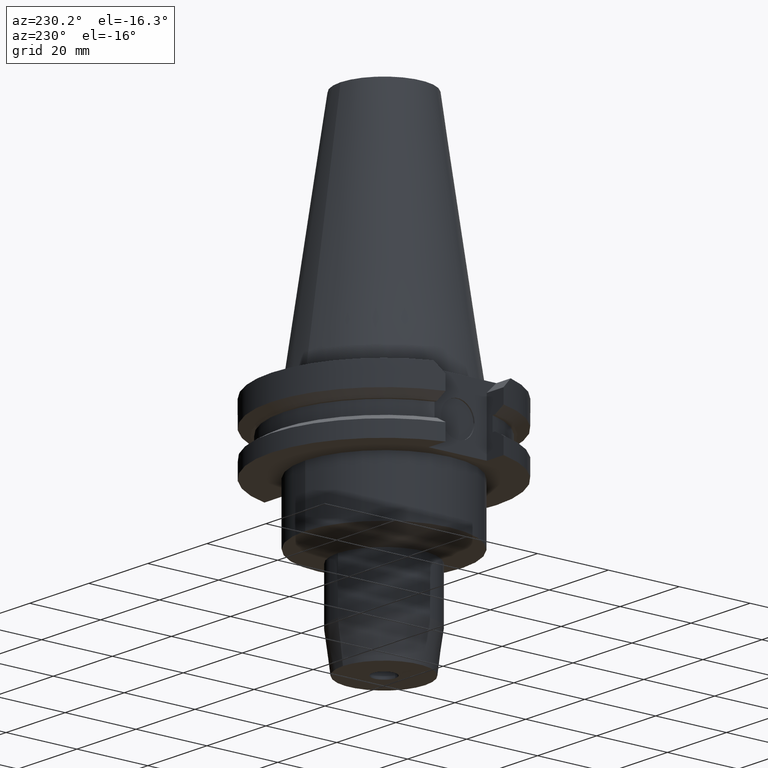
[diagram: clean part render]
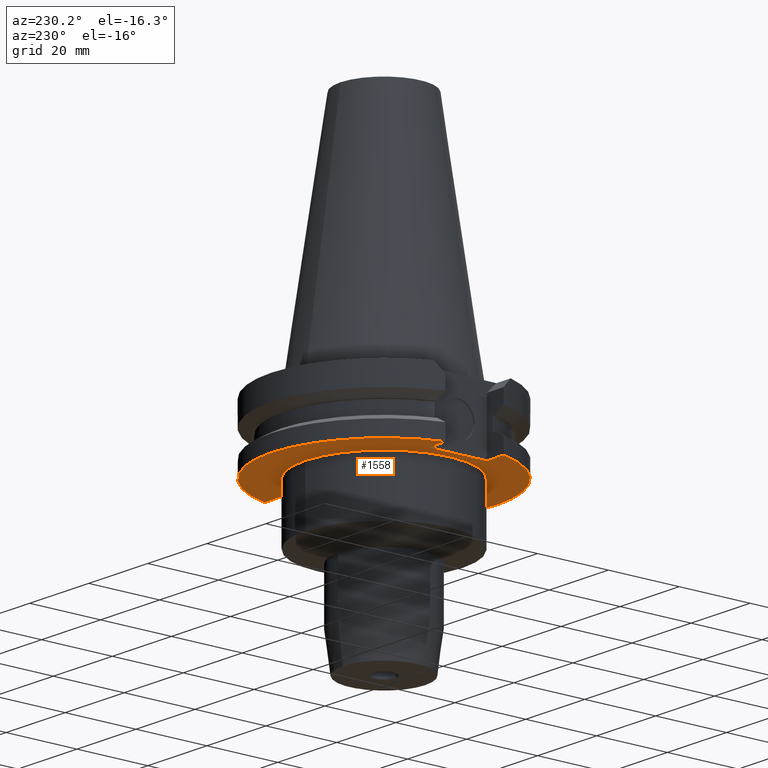
[diagram: same view with one face highlighted and labeled with its STEP entity id]
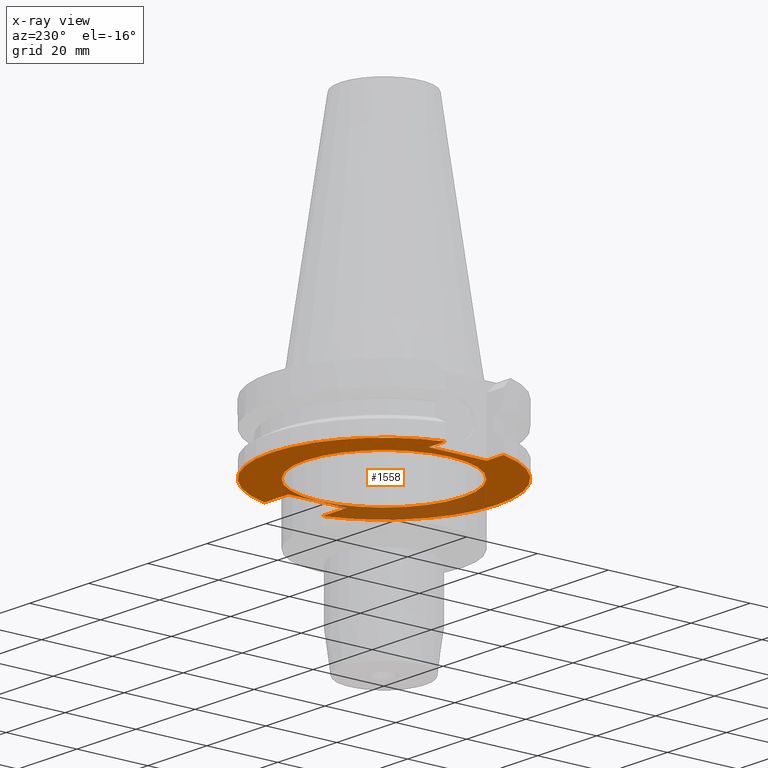
[diagram: x-ray of the same camera — body ghosted, the highlighted face saturated]
A machine part, auxiliary view. The second image highlights one B-rep face of the part: STEP entity #1558.
The next image is the same camera in x-ray: the body ghosted, the highlighted face saturated — about 27% of this face is hidden behind the body in this view.
In plain terms, the highlighted planar face has unit normal (0, 0, 1).
Its self-contained STEP definition (entity closure, byte-faithful):
#131=DIRECTION('',(0.E0,-1.E0,0.E0));
#132=VECTOR('',#131,1.638E1);
#133=CARTESIAN_POINT('',(2.257E1,8.19E0,-1.905E1));
#134=LINE('',#133,#132);
#166=DIRECTION('',(1.E0,0.E0,0.E0));
#167=VECTOR('',#166,8.105501625890E0);
#168=CARTESIAN_POINT('',(2.257E1,8.19E0,-1.905E1));
#169=LINE('',#168,#167);
#173=CARTESIAN_POINT('',(0.E0,0.E0,-1.905E1));
#174=DIRECTION('',(0.E0,0.E0,1.E0));
#175=DIRECTION('',(9.661575315241E-1,2.579527559055E-1,0.E0));
#176=AXIS2_PLACEMENT_3D('',#173,#174,#175);
#181=CARTESIAN_POINT('',(0.E0,0.E0,-1.905E1));
#182=DIRECTION('',(0.E0,0.E0,1.E0));
#183=DIRECTION('',(0.E0,1.E0,0.E0));
#184=AXIS2_PLACEMENT_3D('',#181,#182,#183);
#189=DIRECTION('',(0.E0,-1.E0,0.E0));
#190=VECTOR('',#189,1.638E1);
#191=CARTESIAN_POINT('',(-2.498E1,8.19E0,-1.905E1));
#192=LINE('',#191,#190);
#196=DIRECTION('',(-1.E0,0.E0,0.E0));
#197=VECTOR('',#196,5.695501625890E0);
#198=CARTESIAN_POINT('',(-2.498E1,-8.19E0,-1.905E1));
#199=LINE('',#198,#197);
#203=CARTESIAN_POINT('',(0.E0,0.E0,-1.905E1));
#204=DIRECTION('',(0.E0,0.E0,1.E0));
#205=DIRECTION('',(-9.661575315241E-1,-2.579527559055E-1,0.E0));
#206=AXIS2_PLACEMENT_3D('',#203,#204,#205);
#211=CARTESIAN_POINT('',(0.E0,0.E0,-1.905E1));
#212=DIRECTION('',(0.E0,0.E0,1.E0));
#213=DIRECTION('',(0.E0,-1.E0,0.E0));
#214=AXIS2_PLACEMENT_3D('',#211,#212,#213);
#219=CARTESIAN_POINT('',(0.E0,0.E0,-1.905E1));
#220=DIRECTION('',(0.E0,0.E0,-1.E0));
#221=DIRECTION('',(0.E0,-1.E0,0.E0));
#222=AXIS2_PLACEMENT_3D('',#219,#220,#221);
#227=CARTESIAN_POINT('',(0.E0,0.E0,-1.905E1));
#228=DIRECTION('',(0.E0,0.E0,-1.E0));
#229=DIRECTION('',(0.E0,1.E0,0.E0));
#230=AXIS2_PLACEMENT_3D('',#227,#228,#229);
#333=DIRECTION('',(-1.E0,0.E0,0.E0));
#334=VECTOR('',#333,5.695501625890E0);
#335=CARTESIAN_POINT('',(-2.498E1,8.19E0,-1.905E1));
#336=LINE('',#335,#334);
#573=DIRECTION('',(1.E0,0.E0,0.E0));
#574=VECTOR('',#573,8.105501625890E0);
#575=CARTESIAN_POINT('',(2.257E1,-8.19E0,-1.905E1));
#576=LINE('',#575,#574);
#1244=CARTESIAN_POINT('',(2.257E1,8.19E0,-1.905E1));
#1245=CARTESIAN_POINT('',(2.257E1,-8.19E0,-1.905E1));
#1246=VERTEX_POINT('',#1244);
#1247=VERTEX_POINT('',#1245);
#1252=CARTESIAN_POINT('',(3.067550162589E1,8.19E0,-1.905E1));
#1253=VERTEX_POINT('',#1252);
#1254=CARTESIAN_POINT('',(-1.812171169876E-14,3.175E1,-1.905E1));
#1255=CARTESIAN_POINT('',(-3.067550162589E1,8.19E0,-1.905E1));
#1256=VERTEX_POINT('',#1254);
#1257=VERTEX_POINT('',#1255);
#1258=CARTESIAN_POINT('',(-2.498E1,8.19E0,-1.905E1));
#1259=VERTEX_POINT('',#1258);
#1260=CARTESIAN_POINT('',(-2.498E1,-8.19E0,-1.905E1));
#1261=VERTEX_POINT('',#1260);
#1262=CARTESIAN_POINT('',(-3.067550162589E1,-8.19E0,-1.905E1));
#1263=VERTEX_POINT('',#1262);
#1264=CARTESIAN_POINT('',(1.812171169876E-14,-3.175E1,-1.905E1));
#1265=CARTESIAN_POINT('',(3.067550162589E1,-8.19E0,-1.905E1));
#1266=VERTEX_POINT('',#1264);
#1267=VERTEX_POINT('',#1265);
#1268=CARTESIAN_POINT('',(0.E0,-2.2225E1,-1.905E1));
#1269=CARTESIAN_POINT('',(0.E0,2.2225E1,-1.905E1));
#1270=VERTEX_POINT('',#1268);
#1271=VERTEX_POINT('',#1269);
#1526=CARTESIAN_POINT('',(0.E0,0.E0,-1.905E1));
#1527=DIRECTION('',(0.E0,0.E0,1.E0));
#1528=DIRECTION('',(0.E0,1.E0,0.E0));
#1529=AXIS2_PLACEMENT_3D('',#1526,#1527,#1528);
#1530=PLANE('',#1529);
#1531=ORIENTED_EDGE('',*,*,#1512,.F.);
#1533=ORIENTED_EDGE('',*,*,#1532,.T.);
#1535=ORIENTED_EDGE('',*,*,#1534,.T.);
#1537=ORIENTED_EDGE('',*,*,#1536,.T.);
#1539=ORIENTED_EDGE('',*,*,#1538,.F.);
#1541=ORIENTED_EDGE('',*,*,#1540,.T.);
#1543=ORIENTED_EDGE('',*,*,#1542,.T.);
#1545=ORIENTED_EDGE('',*,*,#1544,.T.);
#1547=ORIENTED_EDGE('',*,*,#1546,.T.);
#1549=ORIENTED_EDGE('',*,*,#1548,.F.);
#1550=EDGE_LOOP('',(#1531,#1533,#1535,#1537,#1539,#1541,#1543,#1545,#1547,
#1549));
#1551=FACE_OUTER_BOUND('',#1550,.F.);
#1553=ORIENTED_EDGE('',*,*,#1552,.T.);
#1555=ORIENTED_EDGE('',*,*,#1554,.T.);
#1556=EDGE_LOOP('',(#1553,#1555));
#1557=FACE_BOUND('',#1556,.F.);
#177=CIRCLE('',#176,3.175E1);
#185=CIRCLE('',#184,3.175E1);
#207=CIRCLE('',#206,3.175E1);
#215=CIRCLE('',#214,3.175E1);
#223=CIRCLE('',#222,2.2225E1);
#231=CIRCLE('',#230,2.2225E1);
#1512=EDGE_CURVE('',#1246,#1247,#134,.T.);
#1532=EDGE_CURVE('',#1246,#1253,#169,.T.);
#1534=EDGE_CURVE('',#1253,#1256,#177,.T.);
#1536=EDGE_CURVE('',#1256,#1257,#185,.T.);
#1538=EDGE_CURVE('',#1259,#1257,#336,.T.);
#1540=EDGE_CURVE('',#1259,#1261,#192,.T.);
#1542=EDGE_CURVE('',#1261,#1263,#199,.T.);
#1544=EDGE_CURVE('',#1263,#1266,#207,.T.);
#1546=EDGE_CURVE('',#1266,#1267,#215,.T.);
#1548=EDGE_CURVE('',#1247,#1267,#576,.T.);
#1552=EDGE_CURVE('',#1270,#1271,#223,.T.);
#1554=EDGE_CURVE('',#1271,#1270,#231,.T.);
#1558=ADVANCED_FACE('',(#1551,#1557),#1530,.F.);